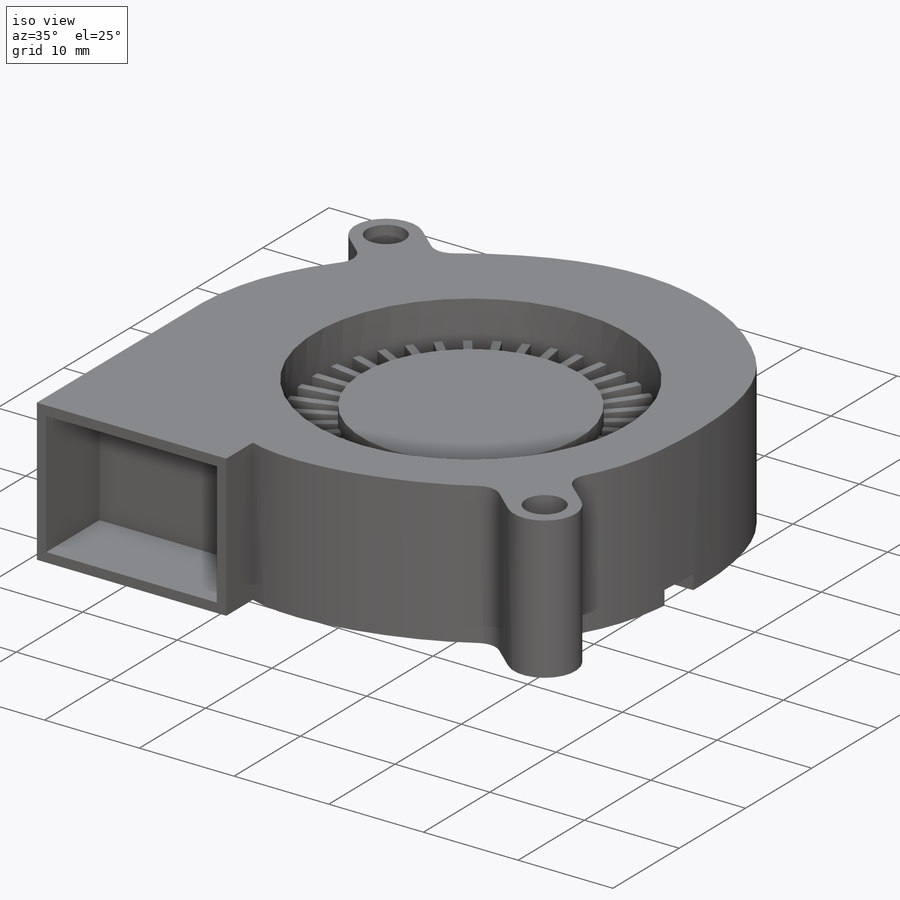
[diagram: iso view]
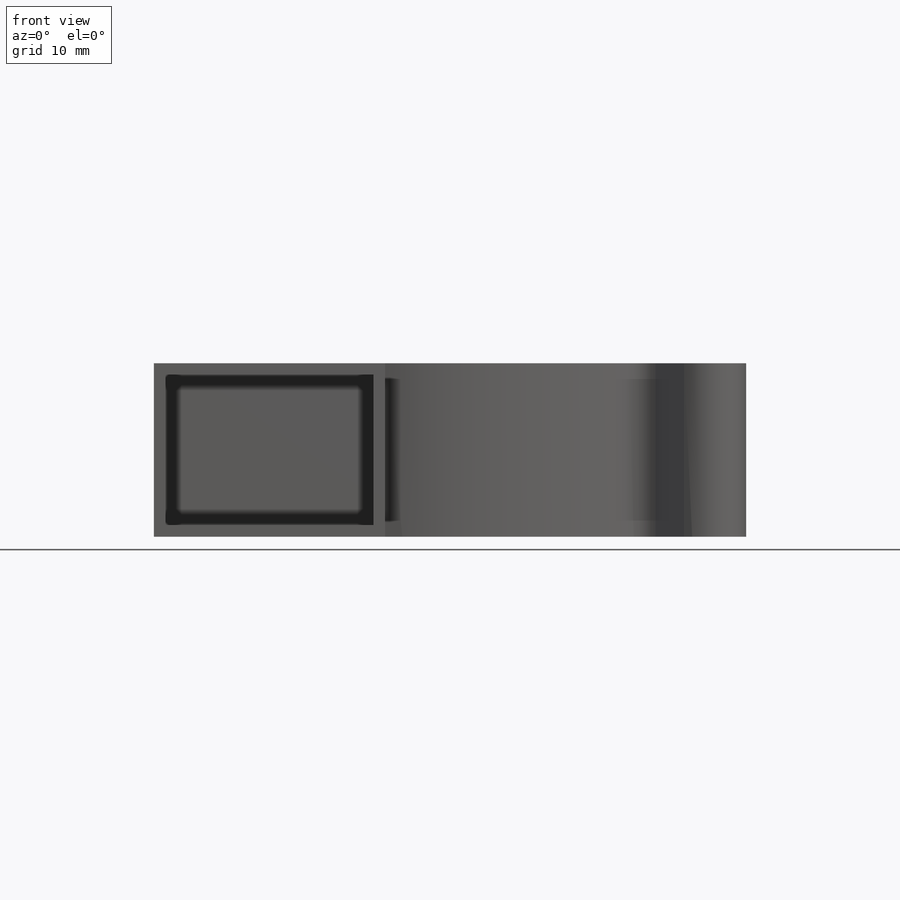
[diagram: front view]
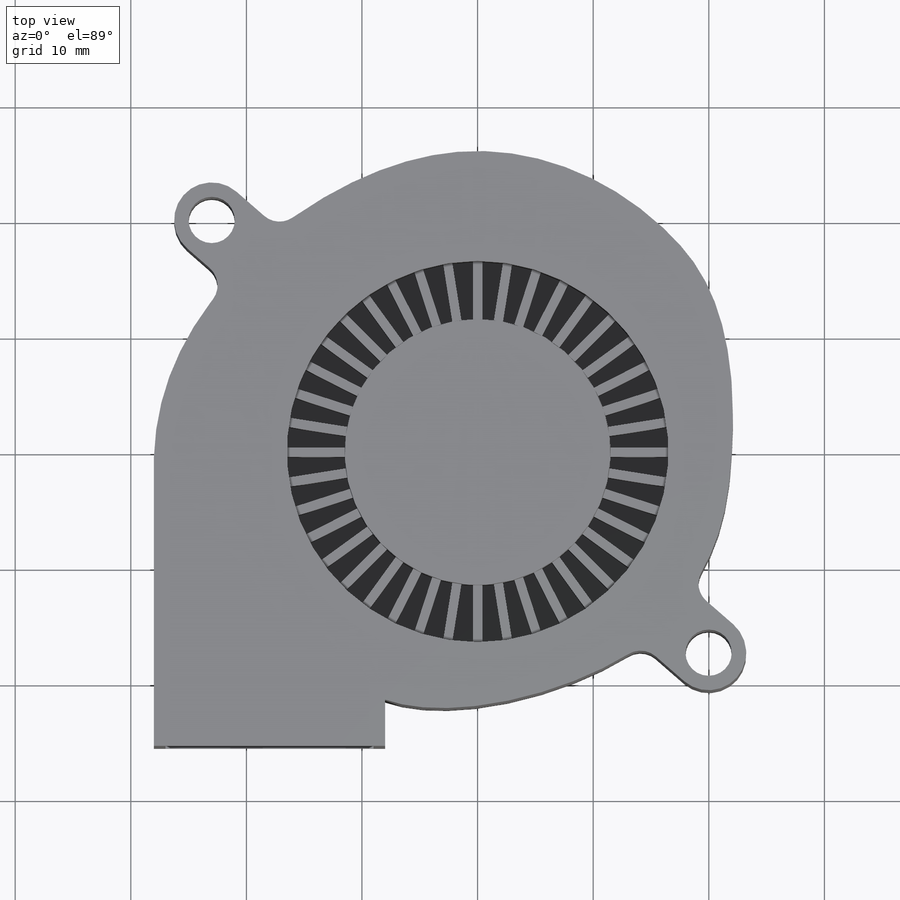
[diagram: top view]
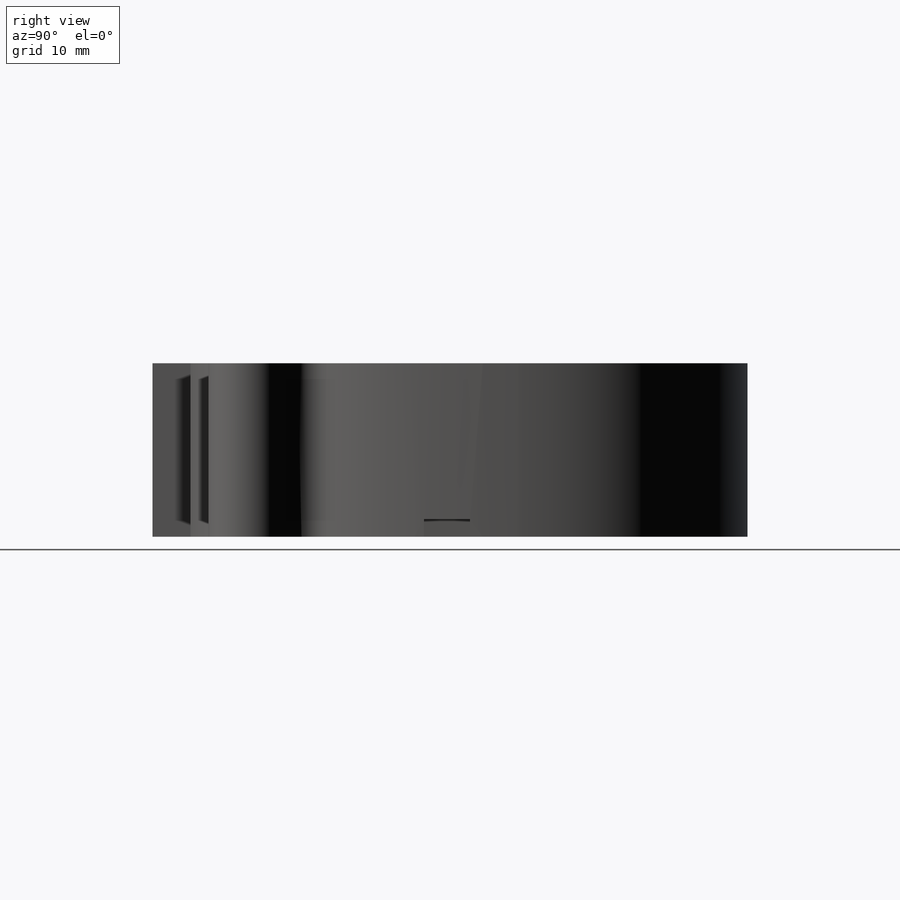
[diagram: right view]
SOLIDWORKS PART (.sldprt)
format: sldprt  version: not decoded by parser v0  size: 461,312 bytes
history: native  units: mm
features: sketch x6, extrude x4, cut_extrude x2, material x1, fillet x1 (+13 scaffold rows collapsed)
feature tree (27):
  scaffold x13  (default folders/planes/origin — collapsed)
  material  "Material <not specified>"
  sketch  "Sketch1"  dims[c1.D1=23.0mm c1.D2=33.0mm c1.D5=4.0mm c1.D11=4.0mm c1.D19=6.5mm c1.D21=6.5mm c1.D3=~144.910523mm c2.D3=45.0deg c2.D4=57.0mm c2.D5=57.0mm c3.D4=57.0mm c3.D6=25.0mm c3.D7=8.0mm c3.D8=20.0mm c3.D9=4.0mm c3.D10=25.0mm c3.D11=~28.67202mm c3.D3=~264.084418mm c4.D3=45.0deg c4.D4=30.5mm c4.D5=26.5mm c4.D12=26.0mm c4.D13=26.0mm c4.D14=22.0mm c4.D15=~66.993177mm c5.D15=45.0deg c5.D16=25.0mm c5.D17=22.0mm c5.D18=22.0mm c5.D20=~264.084418mm c6.D20=90.0deg c6.D21=~2.977375mm c6.D22=5.0mm c6.D23=45.5mm]
  extrude  "Boss-Extrude1"  Depth=15mm
  extrude  "Boss-Extrude2"  [1 undecoded]
  sketch  "Sketch1<3>"  dims[D1=12.5mm]
  extrude  "Boss-Extrude3"  [1 undecoded]
  sketch  "Sketch1<4>"  dims[D1=7.0mm]
  sketch  "Sketch2"  dims[D1=0.8mm D2=40.0]
  extrude  "Boss-Extrude4"  Depth=4mm
  sketch  "Sketch3"  dims[D1=1.0mm]
  cut_extrude  "Cut-Extrude1"  Depth=8mm
  sketch  "Sketch4"  dims[D1=4.0mm D2=5.0mm D3=~0.82962mm]
  cut_extrude  "Cut-Extrude2"  Depth=1.5mm
  fillet  "Fillet1"  Radius=2mm
decode coverage: 11 of 13 modeling features carry decoded parameters
note: ~ marks probable driven/reference dimensions
note: 2 parameter values undecoded
note: suppression state not decoded; provenance and decode notes live in map.json
